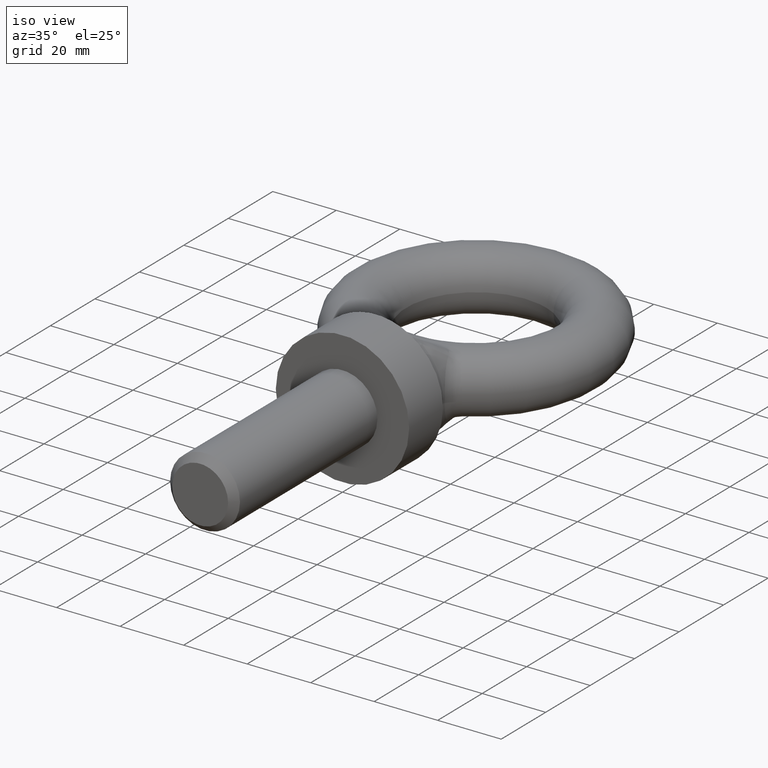
[diagram: clean part render]
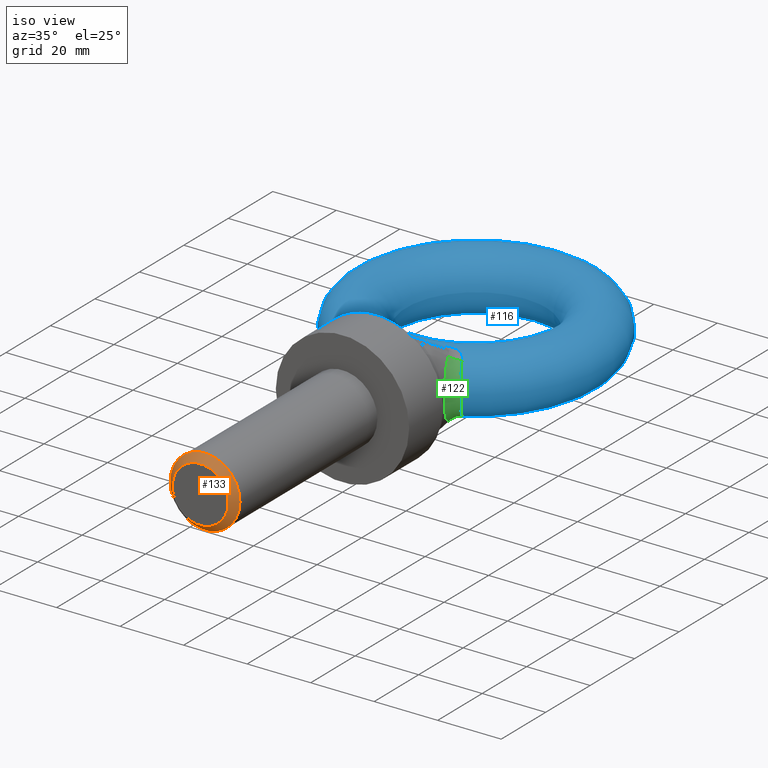
[diagram: same view with three faces highlighted in distinct colors, each labeled with its STEP entity id]
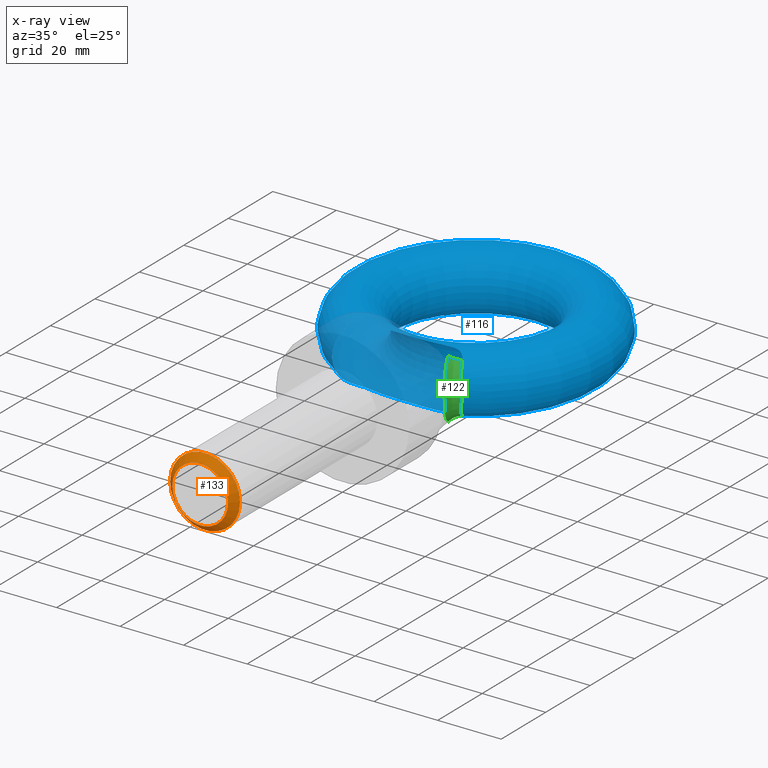
[diagram: x-ray of the same camera — body ghosted, the three highlighted faces saturated]
A machine part, iso view with three faces highlighted in distinct colors.
The next image is the same camera in x-ray (body ghosted, the three faces saturated) — at least one of them is partly hidden behind the body in this view.
Their STEP definitions:

[orange] entity #133 — the highlighted conical surface has half-angle 45 deg.
#70=CONICAL_SURFACE('',#524,11.,45.);
#80=FACE_BOUND('',#196,.T.);
#81=FACE_BOUND('',#197,.T.);
#133=ADVANCED_FACE('',(#80,#81),#70,.T.);
#196=EDGE_LOOP('',(#368));
#197=EDGE_LOOP('',(#369));
#222=CIRCLE('',#489,8.8);
#223=CIRCLE('',#491,11.);
#368=ORIENTED_EDGE('',*,*,#430,.F.);
#369=ORIENTED_EDGE('',*,*,#431,.F.);
#386=VERTEX_POINT('',#857);
#387=VERTEX_POINT('',#860);
#430=EDGE_CURVE('',#386,#386,#222,.T.);
#431=EDGE_CURVE('',#387,#387,#223,.T.);
#489=AXIS2_PLACEMENT_3D('',#856,#555,#556);
#491=AXIS2_PLACEMENT_3D('',#859,#559,#560);
#524=AXIS2_PLACEMENT_3D('',#1267,#625,#626);
#555=DIRECTION('',(2.96883306868402E-18,-1.,0.));
#556=DIRECTION('',(-1.,0.,0.));
#559=DIRECTION('',(-2.96883306868403E-18,1.,0.));
#560=DIRECTION('',(-1.,0.,0.));
#625=DIRECTION('',(-2.96883306868403E-18,1.,0.));
#626=DIRECTION('',(-1.,3.43169827097292E-17,0.));
#856=CARTESIAN_POINT('',(2.74617058853272E-16,-64.,0.));
#857=CARTESIAN_POINT('',(-8.8,-64.,0.));
#859=CARTESIAN_POINT('',(2.68085626102167E-16,-61.8,0.));
#860=CARTESIAN_POINT('',(-11.,-61.8,0.));
#1267=CARTESIAN_POINT('',(2.68085626102167E-16,-61.8,0.));

[blue] entity #116 — the highlighted toroidal blend (fillet) surface has major radius 31.5 mm and minor (blend) radius 9.5 mm.
#71=TOROIDAL_SURFACE('',#505,31.5,9.5);
#116=ADVANCED_FACE('',(#147),#71,.T.);
#147=FACE_OUTER_BOUND('',#179,.T.);
#179=EDGE_LOOP('',(#296,#297,#298,#299,#300,#301,#302,#303));
#212=B_SPLINE_CURVE_WITH_KNOTS('',3,(#884,#885,#886,#887,#888,#889,#890,
#891,#892,#893),.UNSPECIFIED.,.F.,.F.,(4,2,2,2,4),(0.,0.25,0.5,0.75,1.),
 .UNSPECIFIED.);
#213=B_SPLINE_CURVE_WITH_KNOTS('',3,(#896,#897,#898,#899,#900,#901),
 .UNSPECIFIED.,.F.,.F.,(4,2,4),(0.,0.5,1.),.UNSPECIFIED.);
#214=B_SPLINE_CURVE_WITH_KNOTS('',3,(#903,#904,#905,#906,#907,#908),
 .UNSPECIFIED.,.F.,.F.,(4,2,4),(0.,0.5,1.),.UNSPECIFIED.);
#215=B_SPLINE_CURVE_WITH_KNOTS('',3,(#910,#911,#912,#913,#914,#915),
 .UNSPECIFIED.,.F.,.F.,(4,2,4),(0.,0.5,1.),.UNSPECIFIED.);
#216=B_SPLINE_CURVE_WITH_KNOTS('',3,(#917,#918,#919,#920,#921,#922,#923,
#924,#925,#926),.UNSPECIFIED.,.F.,.F.,(4,2,2,2,4),(0.,0.25,0.5,0.75,1.),
 .UNSPECIFIED.);
#217=B_SPLINE_CURVE_WITH_KNOTS('',3,(#928,#929,#930,#931,#932,#933),
 .UNSPECIFIED.,.F.,.F.,(4,2,4),(0.,0.5,1.),.UNSPECIFIED.);
#218=B_SPLINE_CURVE_WITH_KNOTS('',3,(#935,#936,#937,#938,#939,#940),
 .UNSPECIFIED.,.F.,.F.,(4,2,4),(0.,0.5,1.),.UNSPECIFIED.);
#219=B_SPLINE_CURVE_WITH_KNOTS('',3,(#942,#943,#944,#945,#946,#947),
 .UNSPECIFIED.,.F.,.F.,(4,2,4),(0.,0.5,1.),.UNSPECIFIED.);
#296=ORIENTED_EDGE('',*,*,#442,.T.);
#297=ORIENTED_EDGE('',*,*,#443,.T.);
#298=ORIENTED_EDGE('',*,*,#444,.T.);
#299=ORIENTED_EDGE('',*,*,#445,.T.);
#300=ORIENTED_EDGE('',*,*,#446,.T.);
#301=ORIENTED_EDGE('',*,*,#447,.T.);
#302=ORIENTED_EDGE('',*,*,#448,.T.);
#303=ORIENTED_EDGE('',*,*,#449,.T.);
#398=VERTEX_POINT('',#894);
#399=VERTEX_POINT('',#895);
#400=VERTEX_POINT('',#902);
#401=VERTEX_POINT('',#909);
#402=VERTEX_POINT('',#916);
#403=VERTEX_POINT('',#927);
#404=VERTEX_POINT('',#934);
#405=VERTEX_POINT('',#941);
#442=EDGE_CURVE('',#398,#399,#212,.T.);
#443=EDGE_CURVE('',#399,#400,#213,.T.);
#444=EDGE_CURVE('',#400,#401,#214,.T.);
#445=EDGE_CURVE('',#401,#402,#215,.T.);
#446=EDGE_CURVE('',#402,#403,#216,.T.);
#447=EDGE_CURVE('',#403,#404,#217,.T.);
#448=EDGE_CURVE('',#404,#405,#218,.T.);
#449=EDGE_CURVE('',#405,#398,#219,.T.);
#505=AXIS2_PLACEMENT_3D('',#948,#587,#588);
#587=DIRECTION('',(0.,0.,-1.));
#588=DIRECTION('',(-1.,0.,0.));
#884=CARTESIAN_POINT('',(18.1392264895272,27.9200693580255,7.87608496018331));
#885=CARTESIAN_POINT('',(18.6270065805664,26.7124770172653,7.00496641632814));
#886=CARTESIAN_POINT('',(19.2430684618396,25.8399058943362,5.81815132182458));
#887=CARTESIAN_POINT('',(20.1243482317522,24.6779312844777,3.09948753847921));
#888=CARTESIAN_POINT('',(20.3970298155462,24.3852054453212,1.55713669330322));
#889=CARTESIAN_POINT('',(20.3963120676785,24.3860266716047,-1.56364470770402));
#890=CARTESIAN_POINT('',(20.1237897594031,24.6785437694125,-3.10211549073198));
#891=CARTESIAN_POINT('',(19.2417894211966,25.8417164436586,-5.82119003311677));
#892=CARTESIAN_POINT('',(18.6272033851507,26.711989790105,-7.00461494621682));
#893=CARTESIAN_POINT('',(18.1392264895272,27.9200693580255,-7.8760849601833));
#894=CARTESIAN_POINT('',(18.1392264895272,27.9200693580255,7.87608496018331));
#895=CARTESIAN_POINT('',(18.1392264895272,27.9200693580255,-7.8760849601833));
#896=CARTESIAN_POINT('',(18.1392264895272,27.9200693580255,-7.87608496018331));
#897=CARTESIAN_POINT('',(17.7900535077892,28.7845134509545,-8.4996673182848));
#898=CARTESIAN_POINT('',(17.0046502655986,29.5541269651955,-8.94282878130753));
#899=CARTESIAN_POINT('',(14.9900893796544,30.4179859069046,-9.40278442878331));
#900=CARTESIAN_POINT('',(13.8418841955618,30.4883464816865,-9.44655516341847));
#901=CARTESIAN_POINT('',(12.7381460822539,30.3153377929723,-9.46879301398897));
#902=CARTESIAN_POINT('',(12.7381460822539,30.3153377929723,-9.46879301398897));
#903=CARTESIAN_POINT('',(12.7381460822539,30.3153377929723,-9.46879301398897));
#904=CARTESIAN_POINT('',(8.52140109332532,29.6543716522001,-9.55375097985704));
#905=CARTESIAN_POINT('',(4.25500413764023,29.5071496568922,-9.4451983068604));
#906=CARTESIAN_POINT('',(-4.25872759471792,29.5122332949161,-9.44720923719402));
#907=CARTESIAN_POINT('',(-8.50805461930013,29.6653382174147,-9.55568107666295));
#908=CARTESIAN_POINT('',(-12.7314609603225,30.3407941375563,-9.46545641741388));
#909=CARTESIAN_POINT('',(-12.7314609603225,30.3407941375563,-9.46545641741388));
#910=CARTESIAN_POINT('',(-12.7314609603225,30.3407941375563,-9.46545641741388));
#911=CARTESIAN_POINT('',(-13.8363149372971,30.5174951460268,-9.44185341416404));
#912=CARTESIAN_POINT('',(-14.9838089387413,30.4520266307332,-9.39522863494664));
#913=CARTESIAN_POINT('',(-16.9996742415598,29.6017823073136,-8.92858273847449));
#914=CARTESIAN_POINT('',(-17.7918963027328,28.8357346855377,-8.47967357361319));
#915=CARTESIAN_POINT('',(-18.142727709562,27.9718968667719,-7.84957292890932));
#916=CARTESIAN_POINT('',(-18.142727709562,27.9718968667719,-7.84957292890932));
#917=CARTESIAN_POINT('',(-18.142727709562,27.9718968667719,-7.84957292890932));
#918=CARTESIAN_POINT('',(-18.6286086365314,26.7755321401169,-6.97692048282474));
#919=CARTESIAN_POINT('',(-19.2387525445325,25.9109243533149,-5.79201910387401));
#920=CARTESIAN_POINT('',(-20.1105985270435,24.760534959323,-3.08284485241582));
#921=CARTESIAN_POINT('',(-20.3797484825477,24.471099048773,-1.5467140843006));
#922=CARTESIAN_POINT('',(-20.3788201846197,24.4721628304565,1.55519833681515));
#923=CARTESIAN_POINT('',(-20.1097501644506,24.7614973670222,3.08664274836564));
#924=CARTESIAN_POINT('',(-19.2372585855958,25.9130530302839,5.79549661375029));
#925=CARTESIAN_POINT('',(-18.6288571030369,26.7749203512064,6.97647423171309));
#926=CARTESIAN_POINT('',(-18.142727709562,27.9718968667719,7.84957292890933));
#927=CARTESIAN_POINT('',(-18.142727709562,27.9718968667719,7.84957292890933));
#928=CARTESIAN_POINT('',(-18.142727709562,27.9718968667719,7.84957292890932));
#929=CARTESIAN_POINT('',(-17.7927177940061,28.8337119611868,8.47819815786977));
#930=CARTESIAN_POINT('',(-17.0041445988736,29.5991734916446,8.92713642016212));
#931=CARTESIAN_POINT('',(-14.9846895151432,30.4523766353678,9.39543519501615));
#932=CARTESIAN_POINT('',(-13.8355904757516,30.5173792817693,9.44186889084111));
#933=CARTESIAN_POINT('',(-12.7314609603225,30.3407941375563,9.46545641741388));
#934=CARTESIAN_POINT('',(-12.7314609603225,30.3407941375563,9.46545641741388));
#935=CARTESIAN_POINT('',(-12.7314609603225,30.3407941375563,9.46545641741388));
#936=CARTESIAN_POINT('',(-8.51673336322211,29.6667262223776,9.55549567259575));
#937=CARTESIAN_POINT('',(-4.25054055630366,29.5119840977196,9.44711069055182));
#938=CARTESIAN_POINT('',(4.26328447438101,29.507389494247,9.44529315098078));
#939=CARTESIAN_POINT('',(8.51304464589693,29.6530617961803,9.55391934355399));
#940=CARTESIAN_POINT('',(12.7381460822539,30.3153377929723,9.46879301398897));
#941=CARTESIAN_POINT('',(12.7381460822539,30.3153377929723,9.46879301398897));
#942=CARTESIAN_POINT('',(12.7381460822539,30.3153377929723,9.46879301398897));
#943=CARTESIAN_POINT('',(13.8425872597967,30.4884566855654,9.44654099824903));
#944=CARTESIAN_POINT('',(14.988810725585,30.4177821597596,9.4026529223252));
#945=CARTESIAN_POINT('',(17.0003844968815,29.5567061323926,8.94422500001336));
#946=CARTESIAN_POINT('',(17.7892451865946,28.786514603731,8.50111088598047));
#947=CARTESIAN_POINT('',(18.1392264895272,27.9200693580255,7.87608496018331));
#948=CARTESIAN_POINT('',(0.0837289890841739,60.,0.));

[green] entity #122 — the highlighted face is a freeform B-spline surface patch.
#91=(
BOUNDED_SURFACE()
B_SPLINE_SURFACE(3,2,((#1070,#1071,#1072),(#1073,#1074,#1075),(#1076,#1077,
#1078),(#1079,#1080,#1081),(#1082,#1083,#1084),(#1085,#1086,#1087),(#1088,
#1089,#1090),(#1091,#1092,#1093),(#1094,#1095,#1096),(#1097,#1098,#1099),
(#1100,#1101,#1102),(#1103,#1104,#1105),(#1106,#1107,#1108),(#1109,#1110,
#1111)),.UNSPECIFIED.,.F.,.F.,.F.)
B_SPLINE_SURFACE_WITH_KNOTS((4,2,2,2,2,2,4),(3,3),(0.,0.25,0.375,0.5,0.625,
0.75,1.),(0.,1.),.UNSPECIFIED.)
GEOMETRIC_REPRESENTATION_ITEM()
RATIONAL_B_SPLINE_SURFACE(((1.,0.912389473561327,1.),(1.,0.903962508387821,
1.),(1.,0.890931316214463,1.),(1.,0.876186226367447,1.),(1.,0.871949418626131,
1.),(1.,0.866241098942781,1.),(1.,0.864703288675472,1.),(1.,0.864711436574941,
1.),(1.,0.866244056172577,1.),(1.,0.871969509659153,1.),(1.,0.876201912545992,
1.),(1.,0.890957402332229,1.),(1.,0.904002571106489,1.),(1.,0.912389473561327,
1.)))
REPRESENTATION_ITEM('')
SURFACE()
);
#122=ADVANCED_FACE('',(#153),#91,.T.);
#153=FACE_OUTER_BOUND('',#185,.T.);
#185=EDGE_LOOP('',(#324,#325,#326,#327));
#198=B_SPLINE_CURVE_WITH_KNOTS('',3,(#635,#636,#637,#638,#639,#640,#641,
#642,#643,#644),.UNSPECIFIED.,.F.,.F.,(4,2,2,2,4),(0.,0.25,0.5,0.75,1.),
 .UNSPECIFIED.);
#212=B_SPLINE_CURVE_WITH_KNOTS('',3,(#884,#885,#886,#887,#888,#889,#890,
#891,#892,#893),.UNSPECIFIED.,.F.,.F.,(4,2,2,2,4),(0.,0.25,0.5,0.75,1.),
 .UNSPECIFIED.);
#238=CIRCLE('',#510,4.75);
#240=CIRCLE('',#512,4.75);
#324=ORIENTED_EDGE('',*,*,#454,.T.);
#325=ORIENTED_EDGE('',*,*,#409,.F.);
#326=ORIENTED_EDGE('',*,*,#456,.F.);
#327=ORIENTED_EDGE('',*,*,#442,.F.);
#370=VERTEX_POINT('',#629);
#373=VERTEX_POINT('',#634);
#398=VERTEX_POINT('',#894);
#399=VERTEX_POINT('',#895);
#409=EDGE_CURVE('',#373,#370,#198,.T.);
#442=EDGE_CURVE('',#398,#399,#212,.T.);
#454=EDGE_CURVE('',#398,#370,#238,.T.);
#456=EDGE_CURVE('',#399,#373,#240,.T.);
#510=AXIS2_PLACEMENT_3D('',#1031,#597,#598);
#512=AXIS2_PLACEMENT_3D('',#1069,#601,#602);
#597=DIRECTION('',(-0.338783114150726,0.757890913126055,0.557518937227509));
#598=DIRECTION('',(0.,-0.592560287960726,0.805526104562665));
#601=DIRECTION('',(0.338783114150726,-0.757890913126054,0.55751893722751));
#602=DIRECTION('',(0.,-0.592560287960726,-0.805526104562665));
#629=CARTESIAN_POINT('',(15.3826310353096,25.6054920336228,9.34744149120657));
#634=CARTESIAN_POINT('',(15.3826310353096,25.6054920336228,-9.34744149120657));
#635=CARTESIAN_POINT('',(15.3826310353096,25.6054920336228,-9.34744149120656));
#636=CARTESIAN_POINT('',(15.9552151287157,23.9865432153175,-8.40516762366341));
#637=CARTESIAN_POINT('',(16.6300938755648,22.6464815340527,-7.09198878667958));
#638=CARTESIAN_POINT('',(17.659573052671,20.7807127812104,-3.8724419760485));
#639=CARTESIAN_POINT('',(17.9995026794357,20.2603556365017,-1.96282126395923));
#640=CARTESIAN_POINT('',(18.0004961623347,20.2587640281694,1.95368931282212));
#641=CARTESIAN_POINT('',(17.6599113556333,20.7802645422157,3.87030148242102));
#642=CARTESIAN_POINT('',(16.6318933470482,22.643055736347,7.08744145274369));
#643=CARTESIAN_POINT('',(15.955265896078,23.9863996735002,8.40508407827779));
#644=CARTESIAN_POINT('',(15.3826310353096,25.6054920336228,9.34744149120657));
#884=CARTESIAN_POINT('',(18.1392264895272,27.9200693580255,7.87608496018331));
#885=CARTESIAN_POINT('',(18.6270065805664,26.7124770172653,7.00496641632814));
#886=CARTESIAN_POINT('',(19.2430684618396,25.8399058943362,5.81815132182458));
#887=CARTESIAN_POINT('',(20.1243482317522,24.6779312844777,3.09948753847921));
#888=CARTESIAN_POINT('',(20.3970298155462,24.3852054453212,1.55713669330322));
#889=CARTESIAN_POINT('',(20.3963120676785,24.3860266716047,-1.56364470770402));
#890=CARTESIAN_POINT('',(20.1237897594031,24.6785437694125,-3.10211549073198));
#891=CARTESIAN_POINT('',(19.2417894211966,25.8417164436586,-5.82119003311677));
#892=CARTESIAN_POINT('',(18.6272033851507,26.711989790105,-7.00461494621682));
#893=CARTESIAN_POINT('',(18.1392264895272,27.9200693580255,-7.8760849601833));
#894=CARTESIAN_POINT('',(18.1392264895272,27.9200693580255,7.87608496018331));
#895=CARTESIAN_POINT('',(18.1392264895272,27.9200693580255,-7.8760849601833));
#1031=CARTESIAN_POINT('',(19.4419364474052,25.6054920336228,11.814127440275));
#1069=CARTESIAN_POINT('',(19.4419364474052,25.6054920336228,-11.814127440275));
#1070=CARTESIAN_POINT('',(15.3826310353096,25.6054920336228,9.34744149120656));
#1071=CARTESIAN_POINT('',(16.2213309737887,26.9957044604321,7.96723368620473));
#1072=CARTESIAN_POINT('',(18.1392264895272,27.9200693580255,7.87608496018331));
#1073=CARTESIAN_POINT('',(16.0068240100236,23.8406220592776,8.3202373911445));
#1074=CARTESIAN_POINT('',(16.6750143288398,25.5793086648693,7.01053659113316));
#1075=CARTESIAN_POINT('',(18.6236389922712,26.720814138515,7.01098054713584));
#1076=CARTESIAN_POINT('',(16.7084919993849,22.4961473945297,6.90482878615782));
#1077=CARTESIAN_POINT('',(17.1691706637041,24.5900236523247,5.71676723746117));
#1078=CARTESIAN_POINT('',(19.2431898792445,25.8397210989874,5.81795758851647));
#1079=CARTESIAN_POINT('',(17.4529088396828,21.1601836942883,4.48425739656396));
#1080=CARTESIAN_POINT('',(17.658308754754,23.6371584071421,3.65881586999988));
#1081=CARTESIAN_POINT('',(19.9042425417781,24.9681548037185,3.77840206553345));
#1082=CARTESIAN_POINT('',(17.6569249312262,20.8195931351879,3.61121415511398));
#1083=CARTESIAN_POINT('',(17.7871720976546,23.4018475859264,2.93196739404126));
#1084=CARTESIAN_POINT('',(20.0875542825633,24.7475639704479,3.04278229740947));
#1085=CARTESIAN_POINT('',(17.9288402694555,20.3720772440485,1.83427159750284));
#1086=CARTESIAN_POINT('',(17.9572102026563,23.0937972746631,1.4758368912508));
#1087=CARTESIAN_POINT('',(20.3322864927283,24.4581003614946,1.54554366081396));
#1088=CARTESIAN_POINT('',(18.0001902055624,20.2592541862995,0.921573504496469));
#1089=CARTESIAN_POINT('',(18.000116294059,23.0184489712108,0.742520063865737));
#1090=CARTESIAN_POINT('',(20.3968431149125,24.385419062678,0.776511008418259));
#1091=CARTESIAN_POINT('',(17.9998090307539,20.2598648462896,-0.928988706608214));
#1092=CARTESIAN_POINT('',(17.9998832401149,23.0188627032968,-0.748487505850959));
#1093=CARTESIAN_POINT('',(20.3964988269195,24.3858129871911,-0.782759002790193));
#1094=CARTESIAN_POINT('',(17.9287061072499,20.3722815617281,-1.8363452505211));
#1095=CARTESIAN_POINT('',(17.9571329043734,23.0939284639834,-1.47749317789076));
#1096=CARTESIAN_POINT('',(20.3321645063081,24.4582314531422,-1.54729090547892));
#1097=CARTESIAN_POINT('',(17.6559611642866,20.8211958462055,-3.61631054037904));
#1098=CARTESIAN_POINT('',(17.7865662201719,23.4029540524603,-2.93616406199753));
#1099=CARTESIAN_POINT('',(20.0866881037971,24.7486017109748,-3.04707647389064));
#1100=CARTESIAN_POINT('',(17.4521432288189,21.1614879901687,-4.48727065473811));
#1101=CARTESIAN_POINT('',(17.6578175059729,23.6380706092501,-3.66134496538725));
#1102=CARTESIAN_POINT('',(19.9035566722872,24.9690012609178,-3.78094101453333));
#1103=CARTESIAN_POINT('',(16.707122233228,22.4987454530349,-6.90823215564703));
#1104=CARTESIAN_POINT('',(17.1682449820724,24.5919152503299,-5.71974998197198));
#1105=CARTESIAN_POINT('',(19.2419855351152,25.8414249652528,-5.82082524247238));
#1106=CARTESIAN_POINT('',(16.0046608822147,23.846738179956,-8.32379714565028));
#1107=CARTESIAN_POINT('',(16.673430022979,25.5842548553931,-7.01387746927937));
#1108=CARTESIAN_POINT('',(18.621897650341,26.7251251617728,-7.01409038158072));
#1109=CARTESIAN_POINT('',(15.3826310353096,25.6054920336228,-9.34744149120656));
#1110=CARTESIAN_POINT('',(16.2213309737887,26.9957044604321,-7.96723368620473));
#1111=CARTESIAN_POINT('',(18.1392264895272,27.9200693580255,-7.87608496018331));